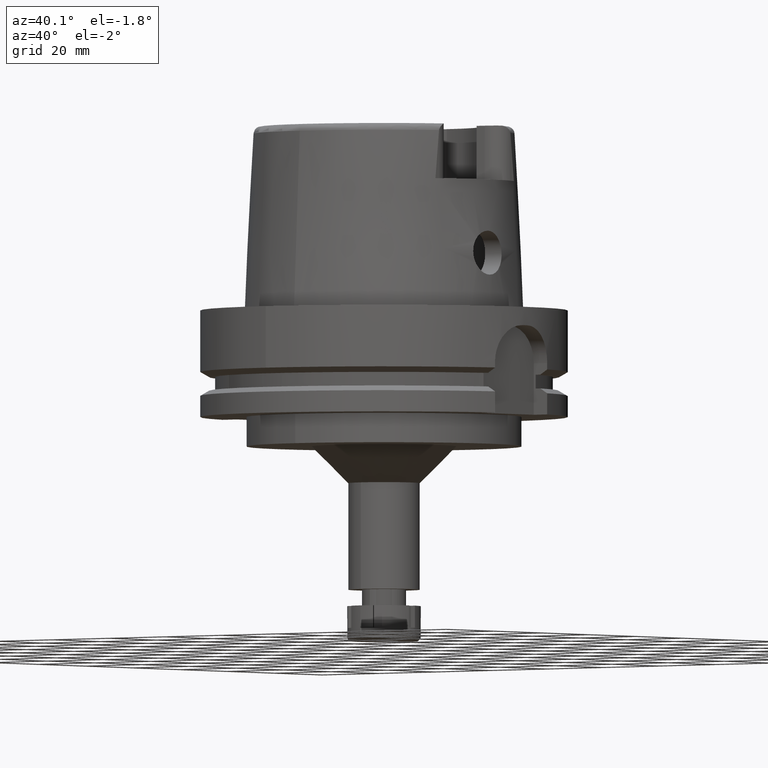
[diagram: clean part render]
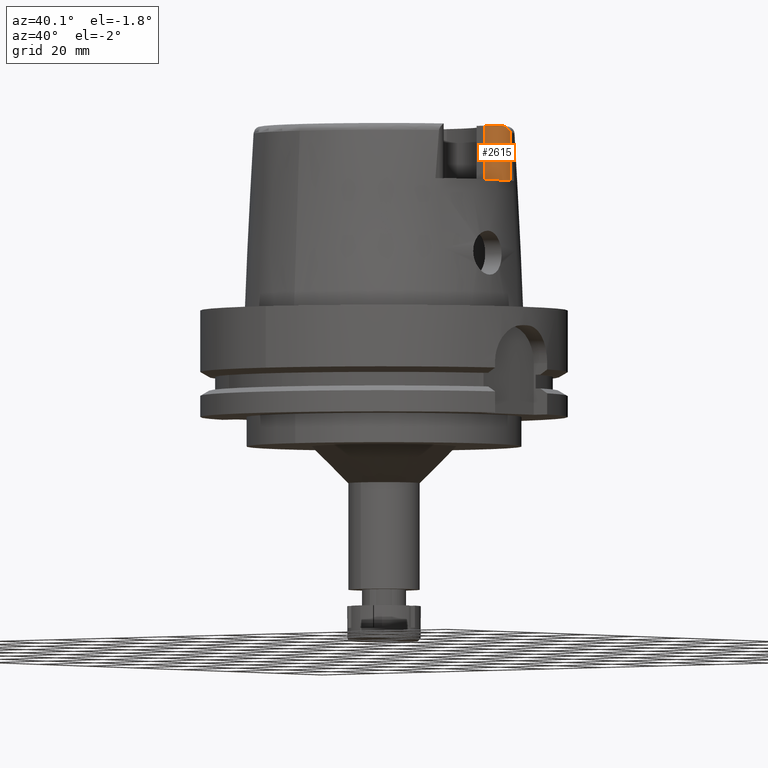
[diagram: same view with one face highlighted and labeled with its STEP entity id]
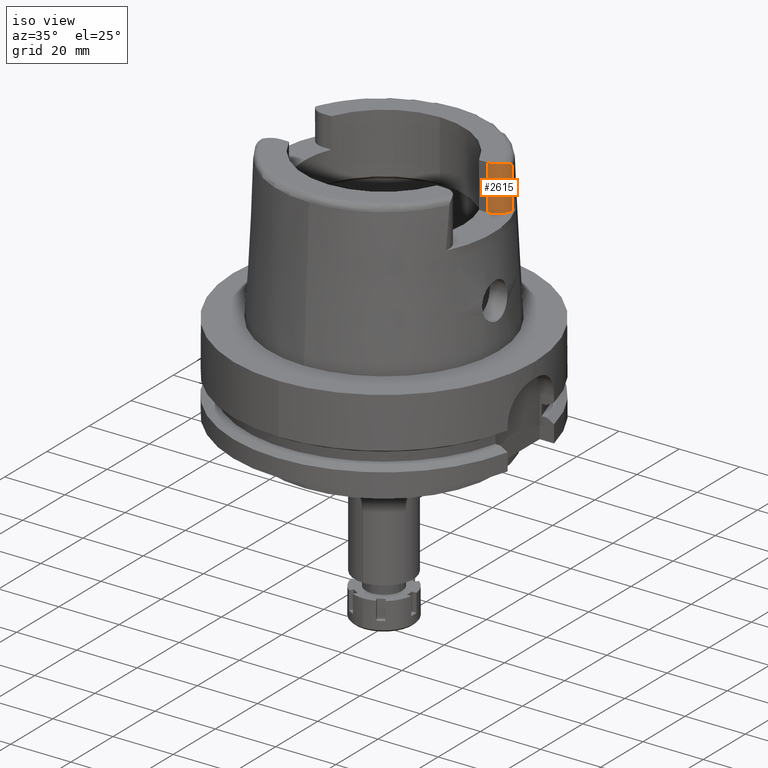
[diagram: same view with one face highlighted and labeled with its STEP entity id]
A machine part, auxiliary view. The second image highlights one B-rep face of the part: STEP entity #2615.
A second angle (iso view) of the same face is appended — the face is thin or edge-on in the first view.
In plain terms, the highlighted cylindrical surface (edge-blend (fillet) strip) has radius 4.88 mm, axis along (0, 0, 1).
Its self-contained STEP definition (entity closure, byte-faithful):
#52 = AXIS2_PLACEMENT_3D ( 'NONE', #483, #4831, #1952 ) ;
#312 = EDGE_CURVE ( 'NONE', #4835, #3032, #2762, .T. ) ;
#451 = CARTESIAN_POINT ( 'NONE',  ( 32.24488199628527241, 14.66353782078641466, 48.81938672994269979 ) ) ;
#483 = CARTESIAN_POINT ( 'NONE',  ( 27.36999999999999744, 14.89000000000000057, 35.00000000000000000 ) ) ;
#619 = DIRECTION ( 'NONE',  ( 2.098162679624000168E-14, 0.0000000000000000000, -1.000000000000000000 ) ) ;
#649 = B_SPLINE_CURVE_WITH_KNOTS ( 'NONE', 3,
 ( #1383, #4169, #1766, #451, #3243, #5134, #3307, #2804, #4734, #3688, #4709, #2710, #6171, #3184, #3788, #2779, #5107, #2367, #1289, #3716, #820, #2744, #4676, #6108, #1792, #5636, #1316, #5171, #856 ),
 .UNSPECIFIED., .F., .F.,
 ( 4, 2, 2, 1, 2, 2, 2, 2, 1, 1, 2, 2, 2, 2, 2, 4 ),
 ( 0.0000000000000000000, 0.1250000000000100753, 0.1875000000000149880, 0.2187500000000174583, 0.2343750000000211220, 0.2500000000000247580, 0.3750000000000573430, 0.4375000000000742184, 0.4687500000000843769, 0.4843750000000900391, 0.4921875000000903166, 0.5000000000000904832, 0.6250000000000677236, 0.6875000000000559552, 0.7500000000000441869, 1.000000000000000000 ),
 .UNSPECIFIED. ) ;
#799 = ORIENTED_EDGE ( 'NONE', *, *, #1295, .T. ) ;
#820 = CARTESIAN_POINT ( 'NONE',  ( 32.08038790141483787, 13.60509215593226173, 49.56750665409661138 ) ) ;
#856 = CARTESIAN_POINT ( 'NONE',  ( 31.35385269249000473, 12.07161079256999869, 50.00000000000000000 ) ) ;
#1289 = CARTESIAN_POINT ( 'NONE',  ( 32.12041227505567775, 13.77283840531761072, 49.47444203147374964 ) ) ;
#1295 = EDGE_CURVE ( 'NONE', #4207, #4182, #649, .T. ) ;
#1316 = CARTESIAN_POINT ( 'NONE',  ( 31.67637857623722297, 12.57293347246046089, 49.95643084021074998 ) ) ;
#1383 = CARTESIAN_POINT ( 'NONE',  ( 32.25000000000000000, 14.89000000000000057, 48.54599893821999501 ) ) ;
#1434 = ORIENTED_EDGE ( 'NONE', *, *, #3505, .T. ) ;
#1766 = CARTESIAN_POINT ( 'NONE',  ( 32.24918017459416575, 14.77407239703673447, 48.70191881644235821 ) ) ;
#1792 = CARTESIAN_POINT ( 'NONE',  ( 31.87249004750163195, 13.00629216223217099, 49.82232973345562499 ) ) ;
#1811 = CARTESIAN_POINT ( 'NONE',  ( 27.36999999999999744, 10.00999999999999979, 35.00000000000000000 ) ) ;
#1952 = DIRECTION ( 'NONE',  ( 0.0000000000000000000, -1.000000000000000000, 0.0000000000000000000 ) ) ;
#1970 = CARTESIAN_POINT ( 'NONE',  ( 32.25000000000000000, 14.89000000000000057, 48.54599893821999501 ) ) ;
#2153 = CYLINDRICAL_SURFACE ( 'NONE', #5968, 4.880000000000002558 ) ;
#2367 = CARTESIAN_POINT ( 'NONE',  ( 32.12412802725375371, 13.78875819543879722, 49.46550664887438131 ) ) ;
#2405 = CARTESIAN_POINT ( 'NONE',  ( 31.35385269249000473, 12.07161079256999869, 50.00000000000000000 ) ) ;
#2538 = LINE ( 'NONE', #1970, #3556 ) ;
#2555 = EDGE_CURVE ( 'NONE', #4207, #2624, #2538, .T. ) ;
#2615 = ADVANCED_FACE ( 'NONE', ( #3160 ), #2153, .T. ) ;
#2624 = VERTEX_POINT ( 'NONE', #4050 ) ;
#2642 = DIRECTION ( 'NONE',  ( 0.0000000000000000000, 0.0000000000000000000, 1.000000000000000000 ) ) ;
#2666 = CIRCLE ( 'NONE', #52, 4.879999999999999005 ) ;
#2710 = CARTESIAN_POINT ( 'NONE',  ( 32.20763982244498891, 14.23785311285844912, 49.18197768288450789 ) ) ;
#2729 = CARTESIAN_POINT ( 'NONE',  ( 27.36999999999999744, 14.89000000000000057, 50.00000000000000000 ) ) ;
#2744 = CARTESIAN_POINT ( 'NONE',  ( 32.03659419160965882, 13.45389365555227101, 49.64175430190950067 ) ) ;
#2762 = LINE ( 'NONE', #1811, #3637 ) ;
#2779 = CARTESIAN_POINT ( 'NONE',  ( 32.14189079299100626, 13.86762170946995454, 49.42041459117778857 ) ) ;
#2804 = CARTESIAN_POINT ( 'NONE',  ( 32.23396340446898023, 14.49453481074751160, 48.97649828574088815 ) ) ;
#3032 = VERTEX_POINT ( 'NONE', #4992 ) ;
#3160 = FACE_OUTER_BOUND ( 'NONE', #5300, .T. ) ;
#3184 = CARTESIAN_POINT ( 'NONE',  ( 32.16955403412628556, 14.00538565220231035, 49.33694282547525489 ) ) ;
#3243 = CARTESIAN_POINT ( 'NONE',  ( 32.24293151566701709, 14.62407940073801527, 48.85860136831322365 ) ) ;
#3307 = CARTESIAN_POINT ( 'NONE',  ( 32.23668232197590555, 14.52849378862631902, 48.94698830605667439 ) ) ;
#3505 = EDGE_CURVE ( 'NONE', #4835, #2624, #2666, .T. ) ;
#3556 = VECTOR ( 'NONE', #619, 1000.000000000000000 ) ;
#3637 = VECTOR ( 'NONE', #2642, 1000.000000000000000 ) ;
#3688 = CARTESIAN_POINT ( 'NONE',  ( 32.23110854182052520, 14.46083069284401112, 49.00527463082281798 ) ) ;
#3716 = CARTESIAN_POINT ( 'NONE',  ( 32.11888061392532023, 13.76633278859476484, 49.47807665032227220 ) ) ;
#3757 = AXIS2_PLACEMENT_3D ( 'NONE', #2729, #4243, #6189 ) ;
#3788 = CARTESIAN_POINT ( 'NONE',  ( 32.15149290531749671, 13.91394110623111047, 49.39280493750909784 ) ) ;
#3797 = CARTESIAN_POINT ( 'NONE',  ( 32.25000000000000000, 14.89000000000000057, 48.54599893821999501 ) ) ;
#3858 = ORIENTED_EDGE ( 'NONE', *, *, #2555, .F. ) ;
#4050 = CARTESIAN_POINT ( 'NONE',  ( 32.25000000000000000, 14.89000000000000057, 35.00000000000000000 ) ) ;
#4086 = CARTESIAN_POINT ( 'NONE',  ( 27.36999999999999744, 14.89000000000000057, 50.00000000000000000 ) ) ;
#4169 = CARTESIAN_POINT ( 'NONE',  ( 32.25000000000000000, 14.83730203080435039, 48.62384154292369942 ) ) ;
#4182 = VERTEX_POINT ( 'NONE', #2405 ) ;
#4207 = VERTEX_POINT ( 'NONE', #3797 ) ;
#4243 = DIRECTION ( 'NONE',  ( 0.0000000000000000000, 0.0000000000000000000, -1.000000000000000000 ) ) ;
#4524 = DIRECTION ( 'NONE',  ( 0.0000000000000000000, 0.0000000000000000000, 1.000000000000000000 ) ) ;
#4575 = CIRCLE ( 'NONE', #3757, 4.880000000000001670 ) ;
#4660 = CARTESIAN_POINT ( 'NONE',  ( 27.36999999999999744, 10.00999999999999979, 35.00000000000000000 ) ) ;
#4676 = CARTESIAN_POINT ( 'NONE',  ( 31.95935808755281116, 13.22913635729915072, 49.73824312237265133 ) ) ;
#4709 = CARTESIAN_POINT ( 'NONE',  ( 32.22071875588692080, 14.34655660510057551, 49.10063828341023395 ) ) ;
#4734 = CARTESIAN_POINT ( 'NONE',  ( 32.23204204895267111, 14.47157458234468663, 48.99617893893080378 ) ) ;
#4786 = EDGE_CURVE ( 'NONE', #4182, #3032, #4575, .T. ) ;
#4831 = DIRECTION ( 'NONE',  ( 0.0000000000000000000, 0.0000000000000000000, 1.000000000000000000 ) ) ;
#4835 = VERTEX_POINT ( 'NONE', #4660 ) ;
#4992 = CARTESIAN_POINT ( 'NONE',  ( 27.36999999999999744, 10.00999999999999979, 50.00000000000000000 ) ) ;
#5088 = DIRECTION ( 'NONE',  ( 1.000000000000000000, 0.0000000000000000000, 0.0000000000000000000 ) ) ;
#5107 = CARTESIAN_POINT ( 'NONE',  ( 32.12962187188485075, 13.81256711093436351, 49.45206339968180487 ) ) ;
#5134 = CARTESIAN_POINT ( 'NONE',  ( 32.23894292001326534, 14.56100353797360825, 48.91751132667460666 ) ) ;
#5171 = CARTESIAN_POINT ( 'NONE',  ( 31.52241024299802419, 12.30987045155163351, 50.00000000000000000 ) ) ;
#5300 = EDGE_LOOP ( 'NONE', ( #5693, #1434, #3858, #799, #6086 ) ) ;
#5636 = CARTESIAN_POINT ( 'NONE',  ( 31.84027168564700006, 12.93110313825993529, 49.84750794073753610 ) ) ;
#5693 = ORIENTED_EDGE ( 'NONE', *, *, #312, .F. ) ;
#5968 = AXIS2_PLACEMENT_3D ( 'NONE', #4086, #4524, #5088 ) ;
#6086 = ORIENTED_EDGE ( 'NONE', *, *, #4786, .T. ) ;
#6108 = CARTESIAN_POINT ( 'NONE',  ( 31.93168972833825592, 13.15455807694623758, 49.76792562065099190 ) ) ;
#6171 = CARTESIAN_POINT ( 'NONE',  ( 32.18007118882898965, 14.06475530178882316, 49.29884434452404207 ) ) ;
#6189 = DIRECTION ( 'NONE',  ( 0.8163632566568778115, -0.5775387720149849358, 0.0000000000000000000 ) ) ;